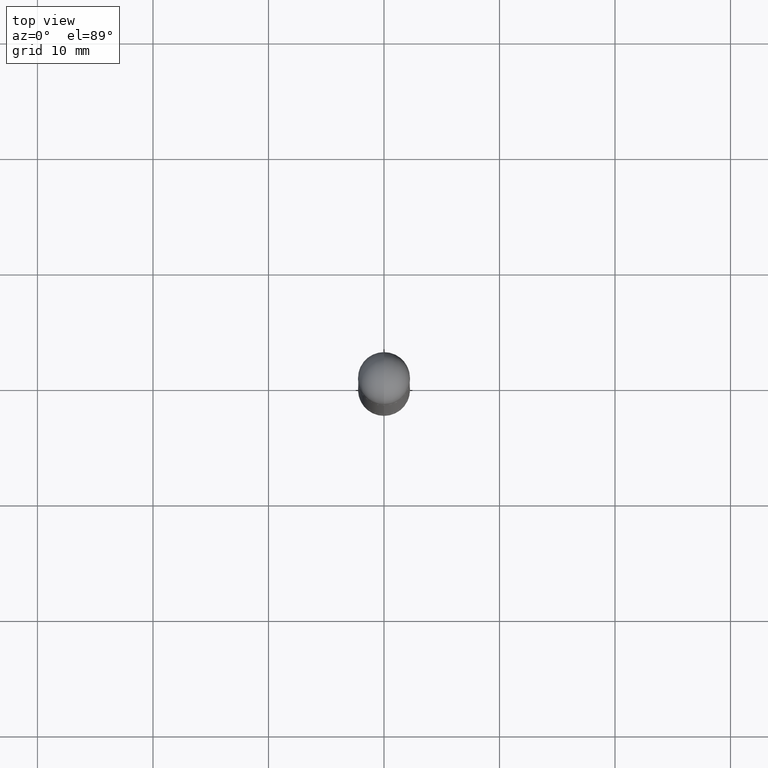
[diagram: clean part render]
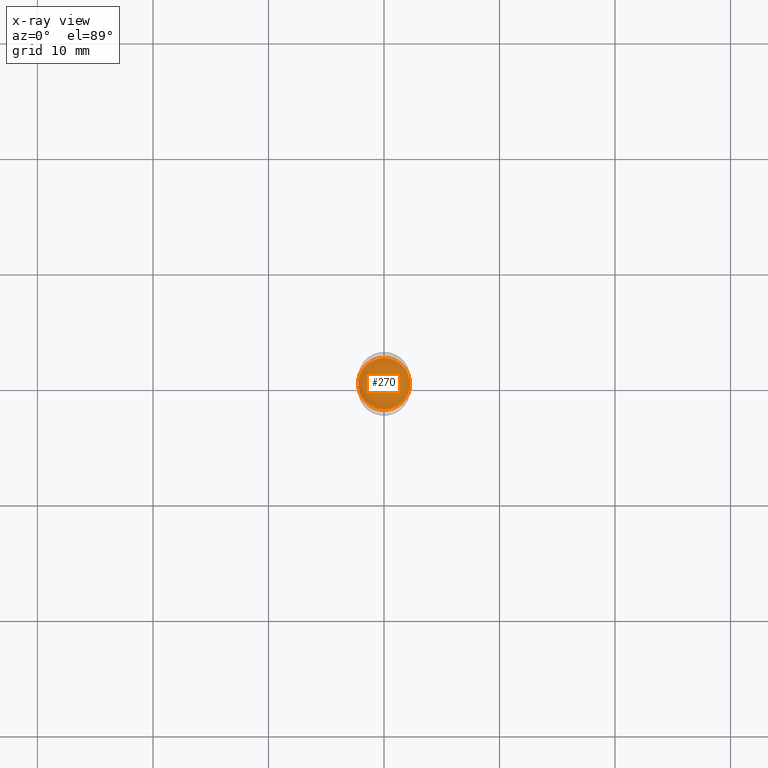
[diagram: x-ray — body ghosted, one internal face saturated and labeled with its STEP entity id]
A machine part, top view, then the same camera in x-ray: the body is ghosted and one INTERNAL B-rep face — a face not visible from any outside direction — is saturated and labeled: STEP entity #270.
In plain terms, the highlighted planar face has unit normal (0, 0, 1).
Its self-contained STEP definition (entity closure, byte-faithful):
#9 = EDGE_CURVE ( 'NONE', #817, #777, #814, .T. ) ;
#87 = DIRECTION ( 'NONE',  ( -1.000000000000000000, 0.000000000000000000, 0.000000000000000000 ) ) ;
#190 = DIRECTION ( 'NONE',  ( 0.000000000000000000, 0.000000000000000000, 1.000000000000000000 ) ) ;
#246 = CARTESIAN_POINT ( 'NONE',  ( 0.000000000000000000, 0.000000000000000000, -1.240150000000000086 ) ) ;
#270 = ADVANCED_FACE ( 'NONE', ( #551 ), #810, .F. ) ;
#273 = CARTESIAN_POINT ( 'NONE',  ( -6.186904932429630168E-16, -0.08860000000000445297, -1.240150000000000086 ) ) ;
#302 = CARTESIAN_POINT ( 'NONE',  ( 6.078401226026096131E-16, 0.08859999999999577935, -1.240150000000000086 ) ) ;
#307 = DIRECTION ( 'NONE',  ( -1.000000000000000000, 0.000000000000000000, 0.000000000000000000 ) ) ;
#309 = AXIS2_PLACEMENT_3D ( 'NONE', #246, #190, #436 ) ;
#320 = CIRCLE ( 'NONE', #378, 0.08860000000000010922 ) ;
#342 = CARTESIAN_POINT ( 'NONE',  ( 3.032367135727152857E-29, -4.330506202156853128E-15, -1.240150000000000086 ) ) ;
#350 = EDGE_CURVE ( 'NONE', #777, #817, #320, .T. ) ;
#378 = AXIS2_PLACEMENT_3D ( 'NONE', #342, #666, #307 ) ;
#426 = EDGE_LOOP ( 'NONE', ( #749, #478 ) ) ;
#432 = AXIS2_PLACEMENT_3D ( 'NONE', #522, #578, #87 ) ;
#436 = DIRECTION ( 'NONE',  ( -1.000000000000000000, 0.000000000000000000, 0.000000000000000000 ) ) ;
#478 = ORIENTED_EDGE ( 'NONE', *, *, #9, .T. ) ;
#522 = CARTESIAN_POINT ( 'NONE',  ( 3.032367135727152857E-29, -4.330506202156853128E-15, -1.240150000000000086 ) ) ;
#551 = FACE_OUTER_BOUND ( 'NONE', #426, .T. ) ;
#578 = DIRECTION ( 'NONE',  ( -0.000000000000000000, -0.000000000000000000, -1.000000000000000000 ) ) ;
#666 = DIRECTION ( 'NONE',  ( -0.000000000000000000, -0.000000000000000000, -1.000000000000000000 ) ) ;
#749 = ORIENTED_EDGE ( 'NONE', *, *, #350, .T. ) ;
#777 = VERTEX_POINT ( 'NONE', #273 ) ;
#810 = PLANE ( 'NONE',  #309 ) ;
#814 = CIRCLE ( 'NONE', #432, 0.08860000000000010922 ) ;
#817 = VERTEX_POINT ( 'NONE', #302 ) ;